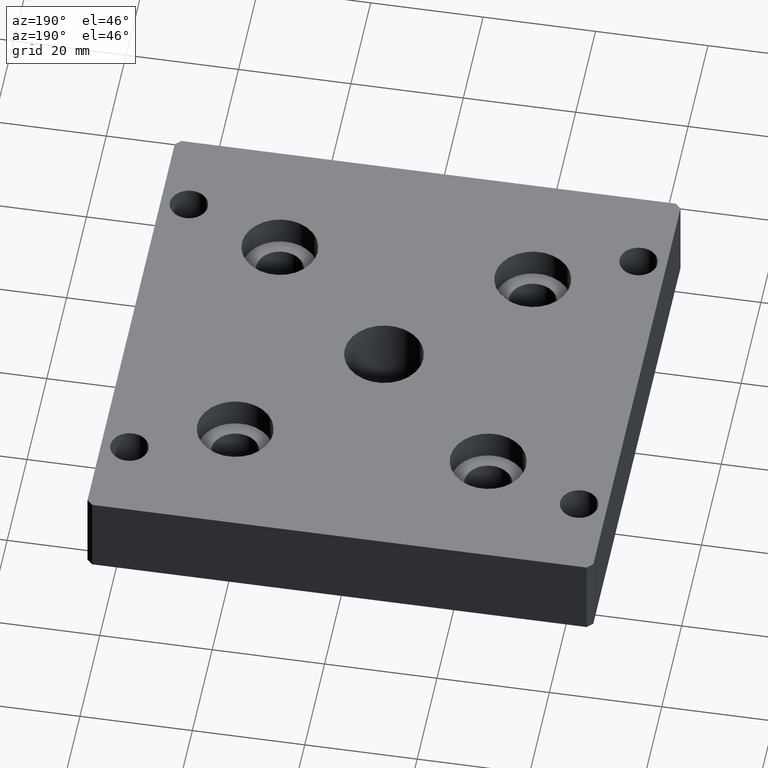
[diagram: clean part render]
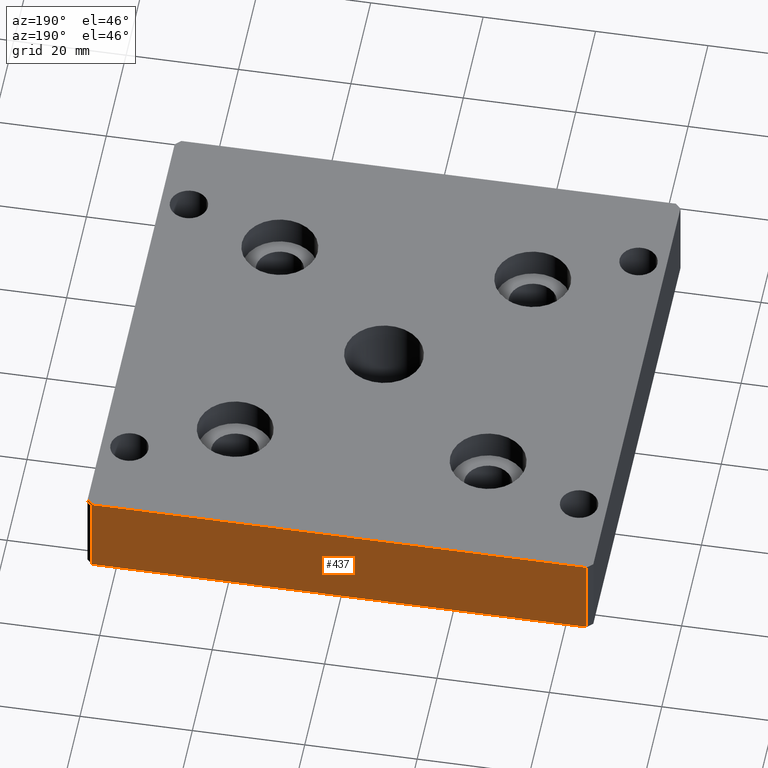
[diagram: same view with one face highlighted and labeled with its STEP entity id]
A machine part, auxiliary view. The second image highlights one B-rep face of the part: STEP entity #437.
In plain terms, the highlighted planar face has unit normal (0, -1, 0).
Its self-contained STEP definition (entity closure, byte-faithful):
#94=FACE_OUTER_BOUND('',#121,.T.);
#121=EDGE_LOOP('',(#338,#339,#340,#341));
#192=LINE('',#678,#216);
#194=LINE('',#682,#218);
#195=LINE('',#684,#219);
#196=LINE('',#685,#220);
#216=VECTOR('',#540,15.);
#218=VECTOR('',#544,87.999999999648);
#219=VECTOR('',#545,15.);
#220=VECTOR('',#546,87.999999999648);
#236=VERTEX_POINT('',#675);
#237=VERTEX_POINT('',#677);
#238=VERTEX_POINT('',#681);
#239=VERTEX_POINT('',#683);
#282=EDGE_CURVE('',#237,#236,#192,.T.);
#284=EDGE_CURVE('',#236,#238,#194,.T.);
#285=EDGE_CURVE('',#239,#238,#195,.T.);
#286=EDGE_CURVE('',#237,#239,#196,.T.);
#338=ORIENTED_EDGE('',*,*,#282,.T.);
#339=ORIENTED_EDGE('',*,*,#284,.T.);
#340=ORIENTED_EDGE('',*,*,#285,.F.);
#341=ORIENTED_EDGE('',*,*,#286,.F.);
#423=PLANE('',#466);
#437=ADVANCED_FACE('',(#94),#423,.F.);
#466=AXIS2_PLACEMENT_3D('',#680,#542,#543);
#540=DIRECTION('',(0.,0.,-1.));
#542=DIRECTION('center_axis',(0.,-1.,0.));
#543=DIRECTION('ref_axis',(0.,0.,-1.));
#544=DIRECTION('',(-1.,0.,0.));
#545=DIRECTION('',(0.,0.,-1.));
#546=DIRECTION('',(-1.,0.,0.));
#675=CARTESIAN_POINT('',(43.9999999998236,44.9999999998199,-15.));
#677=CARTESIAN_POINT('',(43.9999999998236,44.9999999998199,0.));
#678=CARTESIAN_POINT('',(43.9999999998236,44.9999999998199,0.));
#680=CARTESIAN_POINT('Origin',(43.9999999998236,44.9999999998199,0.));
#681=CARTESIAN_POINT('',(-43.9999999998245,44.9999999998199,-15.));
#682=CARTESIAN_POINT('',(43.9999999998236,44.9999999998199,-15.));
#683=CARTESIAN_POINT('',(-43.9999999998245,44.9999999998199,0.));
#684=CARTESIAN_POINT('',(-43.9999999998245,44.9999999998199,0.));
#685=CARTESIAN_POINT('',(43.9999999998236,44.9999999998199,0.));